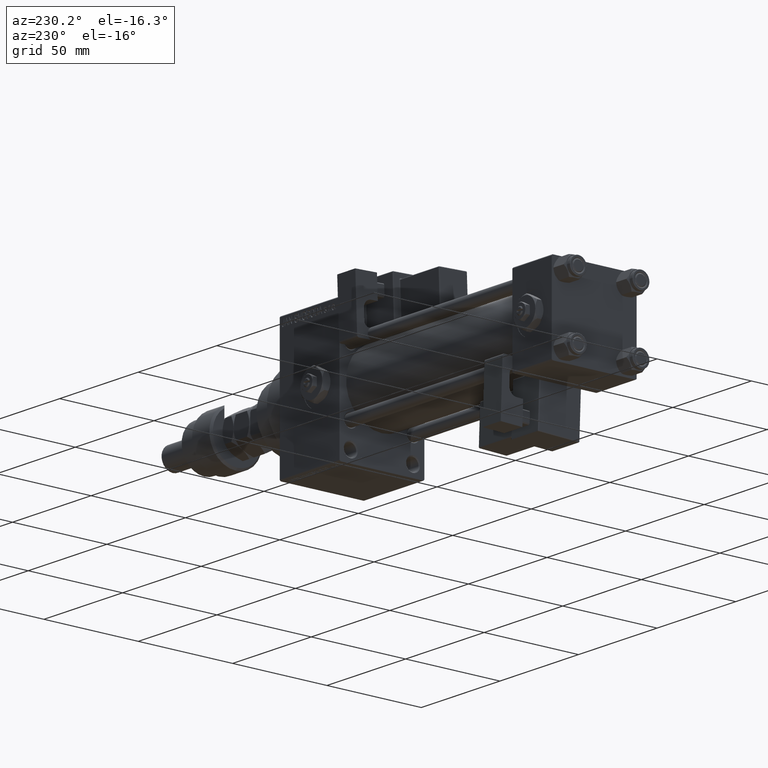
[diagram: clean part render]
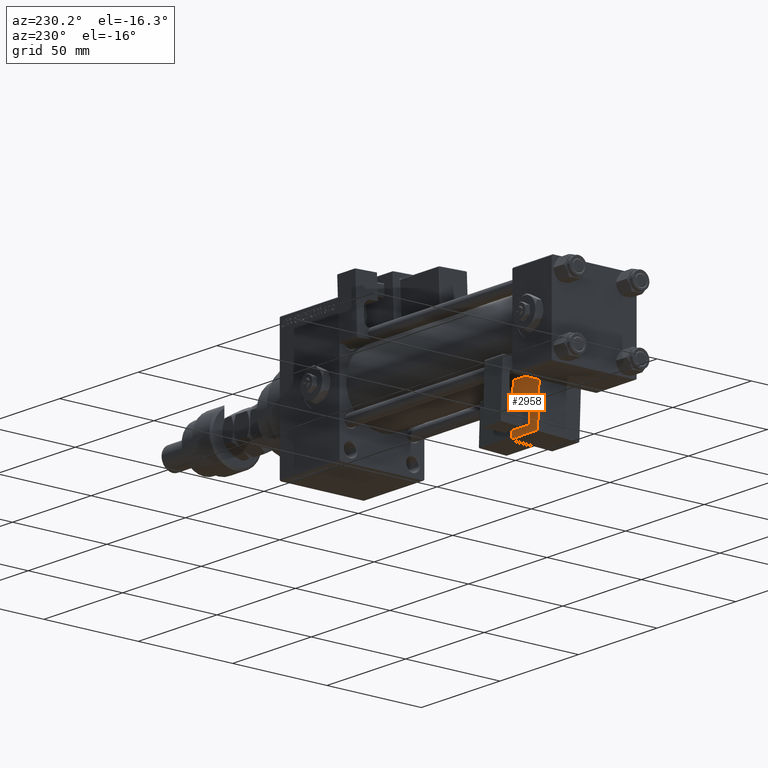
[diagram: same view with one face highlighted and labeled with its STEP entity id]
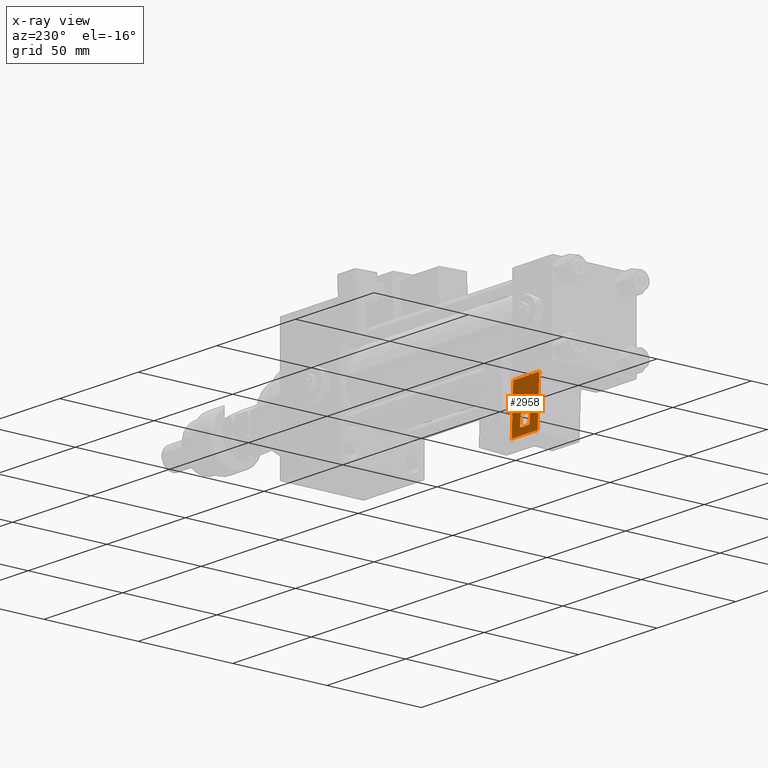
[diagram: x-ray of the same camera — body ghosted, the highlighted face saturated]
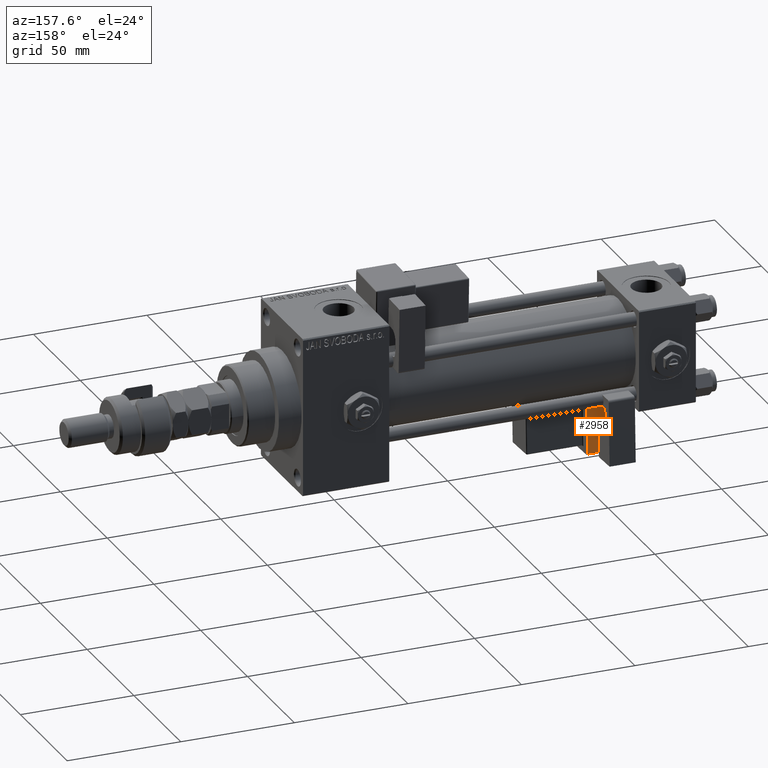
[diagram: same view with one face highlighted and labeled with its STEP entity id]
A machine part, auxiliary view. The second image highlights one B-rep face of the part: STEP entity #2958.
The next image is the same camera in x-ray: the body ghosted, the highlighted face saturated — about 0% of this face is hidden behind the body in this view.
A second angle (auxiliary view) of the same face is appended — the face is thin or edge-on in the first view.
In plain terms, the highlighted planar face has unit normal (0, 0.9994, 0.0353).
Its self-contained STEP definition (entity closure, byte-faithful):
#713 = CARTESIAN_POINT ( 'NONE',  ( -8.250000000000000000, -11.75000000000000000, 25.00000000000000000 ) ) ;
#1691 = ORIENTED_EDGE ( 'NONE', *, *, #27861, .T. ) ;
#2511 = DIRECTION ( 'NONE',  ( 1.334402673828313339E-16, -0.000000000000000000, -1.000000000000000000 ) ) ;
#2666 = LINE ( 'NONE', #6265, #8372 ) ;
#2725 = ORIENTED_EDGE ( 'NONE', *, *, #51116, .T. ) ;
#2958 = ADVANCED_FACE ( 'NONE', ( #42362, #4272 ), #37977, .T. ) ;
#3856 = VERTEX_POINT ( 'NONE', #23129 ) ;
#4272 = FACE_BOUND ( 'NONE', #46012, .T. ) ;
#4342 = EDGE_CURVE ( 'NONE', #19089, #24331, #48685, .T. ) ;
#4927 = CARTESIAN_POINT ( 'NONE',  ( -8.250000000000000000, -11.75000000000000000, 24.50000000000000000 ) ) ;
#5025 = EDGE_CURVE ( 'NONE', #33526, #51152, #37579, .T. ) ;
#5429 = VECTOR ( 'NONE', #24674, 1000.000000000000000 ) ;
#5492 = VERTEX_POINT ( 'NONE', #10778 ) ;
#6265 = CARTESIAN_POINT ( 'NONE',  ( 3.000000000000000000, -11.75000000000000000, 9.000000000000001776 ) ) ;
#6908 = VECTOR ( 'NONE', #45392, 1000.000000000000114 ) ;
#6976 = DIRECTION ( 'NONE',  ( 0.000000000000000000, 0.000000000000000000, -1.000000000000000000 ) ) ;
#7130 = CARTESIAN_POINT ( 'NONE',  ( -2.499999999999999556, -11.75000000000000000, 9.000000000000001776 ) ) ;
#7416 = CARTESIAN_POINT ( 'NONE',  ( 8.250000000000003553, -11.75000000000000000, -0.5000000000000002220 ) ) ;
#7467 = EDGE_CURVE ( 'NONE', #37409, #21545, #13593, .T. ) ;
#8261 = VERTEX_POINT ( 'NONE', #4927 ) ;
#8372 = VECTOR ( 'NONE', #52547, 1000.000000000000000 ) ;
#10222 = CARTESIAN_POINT ( 'NONE',  ( 8.250000000000003553, -11.75000000000000000, -1.000000000000000888 ) ) ;
#10703 = DIRECTION ( 'NONE',  ( 1.000000000000000000, -0.000000000000000000, 7.228014483236695816E-17 ) ) ;
#10778 = CARTESIAN_POINT ( 'NONE',  ( -8.250000000000003553, -11.75000000000000000, -0.5000000000000002220 ) ) ;
#10802 = CARTESIAN_POINT ( 'NONE',  ( 3.000000000000000888, -11.75000000000000000, 3.500000000000008438 ) ) ;
#11023 = DIRECTION ( 'NONE',  ( -0.7071067811865524577, 0.000000000000000000, -0.7071067811865426878 ) ) ;
#11152 = CARTESIAN_POINT ( 'NONE',  ( 3.000000000000000888, -11.75000000000000000, 3.500000000000008438 ) ) ;
#11534 = ORIENTED_EDGE ( 'NONE', *, *, #52946, .T. ) ;
#11823 = LINE ( 'NONE', #29344, #5429 ) ;
#12078 = VECTOR ( 'NONE', #34412, 1000.000000000000000 ) ;
#12368 = DIRECTION ( 'NONE',  ( -0.7071067811865426878, -0.000000000000000000, 0.7071067811865524577 ) ) ;
#13593 = LINE ( 'NONE', #18248, #44698 ) ;
#15155 = LINE ( 'NONE', #48559, #29719 ) ;
#16506 = VERTEX_POINT ( 'NONE', #7416 ) ;
#18248 = CARTESIAN_POINT ( 'NONE',  ( -2.499999999999978684, -11.75000000000000000, 3.000000000000000444 ) ) ;
#18363 = VECTOR ( 'NONE', #12368, 1000.000000000000000 ) ;
#18448 = EDGE_CURVE ( 'NONE', #20288, #16506, #52668, .T. ) ;
#19089 = VERTEX_POINT ( 'NONE', #42592 ) ;
#19425 = ORIENTED_EDGE ( 'NONE', *, *, #18448, .T. ) ;
#19563 = LINE ( 'NONE', #35258, #20688 ) ;
#20288 = VERTEX_POINT ( 'NONE', #53059 ) ;
#20688 = VECTOR ( 'NONE', #52978, 1000.000000000000000 ) ;
#21545 = VERTEX_POINT ( 'NONE', #34079 ) ;
#22495 = CARTESIAN_POINT ( 'NONE',  ( -3.000000000000000000, -11.75000000000000000, 3.500000000000022204 ) ) ;
#23023 = LINE ( 'NONE', #39751, #35039 ) ;
#23129 = CARTESIAN_POINT ( 'NONE',  ( -3.000000000000000000, -11.75000000000000000, 8.500000000000007105 ) ) ;
#23635 = AXIS2_PLACEMENT_3D ( 'NONE', #50034, #50312, #41804 ) ;
#24014 = ORIENTED_EDGE ( 'NONE', *, *, #47567, .T. ) ;
#24149 = EDGE_CURVE ( 'NONE', #5492, #8261, #38257, .T. ) ;
#24331 = VERTEX_POINT ( 'NONE', #10802 ) ;
#24674 = DIRECTION ( 'NONE',  ( -1.445602896647339163E-16, -0.000000000000000000, 1.000000000000000000 ) ) ;
#27861 = EDGE_CURVE ( 'NONE', #49331, #3856, #15155, .T. ) ;
#29344 = CARTESIAN_POINT ( 'NONE',  ( 3.000000000000000000, -11.75000000000000000, 9.000000000000001776 ) ) ;
#29719 = VECTOR ( 'NONE', #11023, 1000.000000000000000 ) ;
#30291 = DIRECTION ( 'NONE',  ( 0.7071067811865472397, -0.000000000000000000, -0.7071067811865479058 ) ) ;
#30645 = ORIENTED_EDGE ( 'NONE', *, *, #7467, .T. ) ;
#31593 = CARTESIAN_POINT ( 'NONE',  ( 8.750000000000000000, -11.75000000000000000, 24.49999999999999645 ) ) ;
#31779 = EDGE_CURVE ( 'NONE', #21545, #19089, #23023, .T. ) ;
#32280 = ORIENTED_EDGE ( 'NONE', *, *, #4342, .T. ) ;
#33029 = CARTESIAN_POINT ( 'NONE',  ( 3.000000000000000000, -11.75000000000000000, 8.500000000000000000 ) ) ;
#33526 = VERTEX_POINT ( 'NONE', #33029 ) ;
#33749 = CARTESIAN_POINT ( 'NONE',  ( 2.500000000000006661, -11.75000000000000000, 9.000000000000001776 ) ) ;
#34079 = CARTESIAN_POINT ( 'NONE',  ( -2.499999999999976907, -11.75000000000000000, 3.000000000000000444 ) ) ;
#34412 = DIRECTION ( 'NONE',  ( 1.334402673828313093E-16, -0.000000000000000000, 1.000000000000000000 ) ) ;
#35039 = VECTOR ( 'NONE', #10703, 1000.000000000000000 ) ;
#35258 = CARTESIAN_POINT ( 'NONE',  ( -8.750000000000003553, -11.75000000000000000, -0.5000000000000002220 ) ) ;
#35376 = ORIENTED_EDGE ( 'NONE', *, *, #46298, .T. ) ;
#36595 = EDGE_LOOP ( 'NONE', ( #2725, #42729, #24014, #19425 ) ) ;
#37409 = VERTEX_POINT ( 'NONE', #22495 ) ;
#37579 = LINE ( 'NONE', #33749, #18363 ) ;
#37977 = PLANE ( 'NONE',  #23635 ) ;
#38257 = LINE ( 'NONE', #713, #12078 ) ;
#38741 = ORIENTED_EDGE ( 'NONE', *, *, #5025, .T. ) ;
#39751 = CARTESIAN_POINT ( 'NONE',  ( 3.000000000000000888, -11.75000000000000000, 3.000000000000000888 ) ) ;
#41804 = DIRECTION ( 'NONE',  ( 0.000000000000000000, -0.000000000000000000, 1.000000000000000000 ) ) ;
#42362 = FACE_OUTER_BOUND ( 'NONE', #36595, .T. ) ;
#42387 = EDGE_CURVE ( 'NONE', #24331, #33526, #11823, .T. ) ;
#42592 = CARTESIAN_POINT ( 'NONE',  ( 2.499999999999993339, -11.75000000000000000, 3.000000000000000888 ) ) ;
#42729 = ORIENTED_EDGE ( 'NONE', *, *, #24149, .T. ) ;
#44258 = CARTESIAN_POINT ( 'NONE',  ( -3.000000000000000000, -11.75000000000000000, 9.000000000000001776 ) ) ;
#44698 = VECTOR ( 'NONE', #30291, 1000.000000000000000 ) ;
#45392 = DIRECTION ( 'NONE',  ( 0.7071067811865474617, -0.000000000000000000, 0.7071067811865474617 ) ) ;
#46012 = EDGE_LOOP ( 'NONE', ( #47565, #38741, #11534, #1691, #35376, #30645, #51020, #32280 ) ) ;
#46298 = EDGE_CURVE ( 'NONE', #3856, #37409, #52475, .T. ) ;
#47565 = ORIENTED_EDGE ( 'NONE', *, *, #42387, .T. ) ;
#47567 = EDGE_CURVE ( 'NONE', #8261, #20288, #51892, .T. ) ;
#47732 = VECTOR ( 'NONE', #2511, 1000.000000000000000 ) ;
#48309 = DIRECTION ( 'NONE',  ( 1.000000000000000000, -0.000000000000000000, -1.982541115402065110E-16 ) ) ;
#48559 = CARTESIAN_POINT ( 'NONE',  ( -3.000000000000000000, -11.75000000000000000, 8.500000000000007105 ) ) ;
#48685 = LINE ( 'NONE', #11152, #6908 ) ;
#48850 = CARTESIAN_POINT ( 'NONE',  ( 2.500000000000006661, -11.75000000000000000, 9.000000000000001776 ) ) ;
#49331 = VERTEX_POINT ( 'NONE', #7130 ) ;
#50034 = CARTESIAN_POINT ( 'NONE',  ( 0.000000000000000000, -11.75000000000000000, 0.000000000000000000 ) ) ;
#50272 = VECTOR ( 'NONE', #48309, 1000.000000000000000 ) ;
#50312 = DIRECTION ( 'NONE',  ( 0.000000000000000000, 1.000000000000000000, 0.000000000000000000 ) ) ;
#51020 = ORIENTED_EDGE ( 'NONE', *, *, #31779, .T. ) ;
#51116 = EDGE_CURVE ( 'NONE', #16506, #5492, #19563, .T. ) ;
#51152 = VERTEX_POINT ( 'NONE', #48850 ) ;
#51892 = LINE ( 'NONE', #31593, #50272 ) ;
#51994 = VECTOR ( 'NONE', #6976, 1000.000000000000000 ) ;
#52475 = LINE ( 'NONE', #44258, #51994 ) ;
#52547 = DIRECTION ( 'NONE',  ( -1.000000000000000000, 0.000000000000000000, 0.000000000000000000 ) ) ;
#52668 = LINE ( 'NONE', #10222, #47732 ) ;
#52946 = EDGE_CURVE ( 'NONE', #51152, #49331, #2666, .T. ) ;
#52978 = DIRECTION ( 'NONE',  ( -1.000000000000000000, 0.000000000000000000, -0.000000000000000000 ) ) ;
#53059 = CARTESIAN_POINT ( 'NONE',  ( 8.250000000000000000, -11.75000000000000000, 24.49999999999999645 ) ) ;